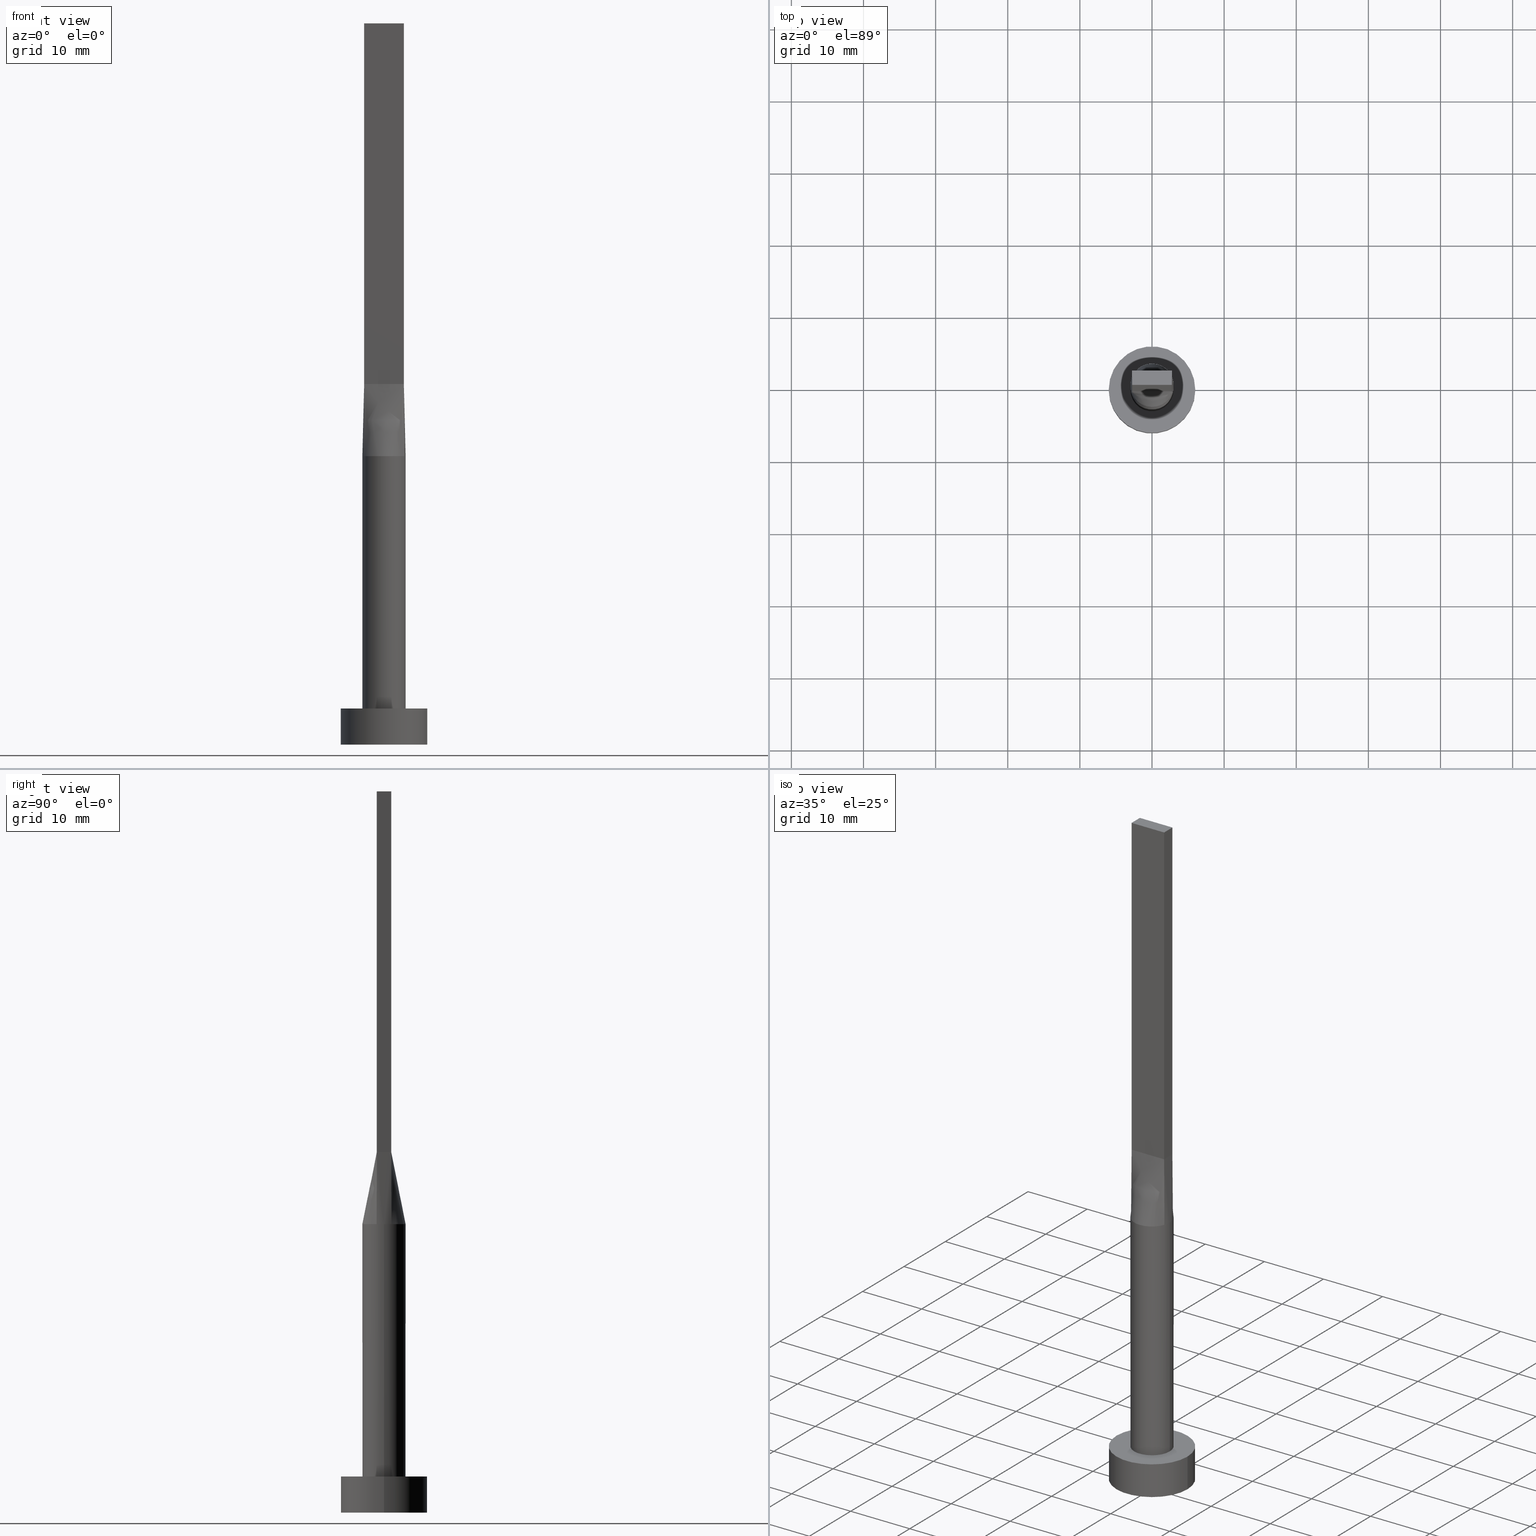
[diagram: canonical four-view strip — front | top / right | iso, engineering-drawing reading convention]
A machine part, canonical four-view strip (front | top / right | iso — engineering-drawing reading convention). The complete STEP part file that produces these views, byte-faithful:
ISO-10303-21;
HEADER;
FILE_DESCRIPTION (( 'STEP AP203' ),
    '1' );
FILE_NAME ('70a2.STEP',
    '2023-02-13T10:49:12',
    ( '' ),
    ( '' ),
    'SwSTEP 2.0',
    'SolidWorks 2019',
    '' );
FILE_SCHEMA (( 'CONFIG_CONTROL_DESIGN' ));
ENDSEC;

DATA;
#1 = B_SPLINE_CURVE_WITH_KNOTS ( 'NONE', 3,
 ( #343, #110, #436, #561, #565, #244, #160, #196, #381, #192, #434, #560, #569, #388, #119, #246, #157, #336 ),
 .UNSPECIFIED., .F., .F.,
 ( 4, 2, 2, 2, 2, 2, 2, 2, 4 ),
 ( 0.000000000000000000, 0.1249999999999998890, 0.2499999999999997780, 0.3749999999999997780, 0.4999999999999997780, 0.6249999999999997780, 0.7499999999999997780, 0.8749999999999998890, 1.000000000000000000 ),
 .UNSPECIFIED. ) ;
#2 = LINE ( 'NONE', #498, #318 ) ;
#3 = VERTEX_POINT ( 'NONE', #186 ) ;
#4 = FACE_OUTER_BOUND ( 'NONE', #559, .T. ) ;
#5 = CARTESIAN_POINT ( 'NONE',  ( 0.000000000000000000, 0.000000000000000000, 0.000000000000000000 ) ) ;
#6 = DIRECTION ( 'NONE',  ( -0.000000000000000000, -0.000000000000000000, -1.000000000000000000 ) ) ;
#7 = ORIENTED_EDGE ( 'NONE', *, *, #527, .F. ) ;
#8 = CARTESIAN_POINT ( 'NONE',  ( -2.784690135232655628, 1.012614594630056430, 45.00000000000000000 ) ) ;
#9 = CARTESIAN_POINT ( 'NONE',  ( 0.000000000000000000, 0.000000000000000000, 40.00000000000000000 ) ) ;
#10 = ORIENTED_EDGE ( 'NONE', *, *, #300, .T. ) ;
#11 = ADVANCED_FACE ( 'NONE', ( #333 ), #65, .T. ) ;
#12 = PLANE ( 'NONE',  #220 ) ;
#13 = CARTESIAN_POINT ( 'NONE',  ( 2.520833333333333037, 1.000000000000000000, 50.00000000000000000 ) ) ;
#14 = LINE ( 'NONE', #274, #545 ) ;
#15 = ORIENTED_EDGE ( 'NONE', *, *, #226, .F. ) ;
#16 = CARTESIAN_POINT ( 'NONE',  ( 1.145833333333335036, 1.000000000000000000, 50.00000000000000000 ) ) ;
#17 = ORIENTED_EDGE ( 'NONE', *, *, #402, .F. ) ;
#18 = AXIS2_PLACEMENT_3D ( 'NONE', #277, #467, #54 ) ;
#19 = ADVANCED_FACE ( 'NONE', ( #368 ), #177, .T. ) ;
#20 = APPLICATION_PROTOCOL_DEFINITION ( 'international standard', 'config_control_design', 1994, #486 ) ;
#21 = VERTEX_POINT ( 'NONE', #317 ) ;
#22 = AXIS2_PLACEMENT_3D ( 'NONE', #363, #359, #542 ) ;
#23 = ORIENTED_EDGE ( 'NONE', *, *, #478, .T. ) ;
#24 = CARTESIAN_POINT ( 'NONE',  ( -2.749999999999999556, 1.000000000000000000, 100.0000000000000000 ) ) ;
#25 = CARTESIAN_POINT ( 'NONE',  ( 0.000000000000000000, 0.000000000000000000, 5.000000000000000000 ) ) ;
#26 = ORIENTED_EDGE ( 'NONE', *, *, #39, .F. ) ;
#27 = CARTESIAN_POINT ( 'NONE',  ( -2.749999999999999556, 1.000000000000000000, 50.00000000000000000 ) ) ;
#28 = PERSON_AND_ORGANIZATION ( #356, #191 ) ;
#29 = ORIENTED_EDGE ( 'NONE', *, *, #195, .F. ) ;
#30 = EDGE_CURVE ( 'NONE', #494, #189, #259, .T. ) ;
#31 = FACE_OUTER_BOUND ( 'NONE', #471, .T. ) ;
#32 = VERTEX_POINT ( 'NONE', #358 ) ;
#33 = CARTESIAN_POINT ( 'NONE',  ( 0.000000000000000000, 0.000000000000000000, 40.00000000000000000 ) ) ;
#34 = CC_DESIGN_APPROVAL ( #143, ( #207 ) ) ;
#35 = EDGE_CURVE ( 'NONE', #194, #416, #213, .T. ) ;
#36 = DIRECTION ( 'NONE',  ( 1.000000000000000000, 0.000000000000000000, 0.000000000000000000 ) ) ;
#37 = CARTESIAN_POINT ( 'NONE',  ( -2.520833333333332593, 1.000000000000000000, 50.00000000000000000 ) ) ;
#38 = CARTESIAN_POINT ( 'NONE',  ( 3.000000000000000444, 3.673940397442060361E-16, 40.00000000000000000 ) ) ;
#39 = EDGE_CURVE ( 'NONE', #218, #44, #251, .T. ) ;
#40 = LINE ( 'NONE', #312, #331 ) ;
#41 = SECURITY_CLASSIFICATION ( '', '', #212 ) ;
#42 = DIRECTION ( 'NONE',  ( 0.000000000000000000, 0.000000000000000000, 1.000000000000000000 ) ) ;
#43 = CARTESIAN_POINT ( 'NONE',  ( 0.6998073349918603192, -2.936959335800557902, 40.00000000000000711 ) ) ;
#44 = VERTEX_POINT ( 'NONE', #407 ) ;
#45 = AXIS2_PLACEMENT_3D ( 'NONE', #169, #533, #166 ) ;
#46 = CARTESIAN_POINT ( 'NONE',  ( -3.000000000000000444, 0.000000000000000000, 5.000000000000000000 ) ) ;
#47 = UNCERTAINTY_MEASURE_WITH_UNIT (LENGTH_MEASURE( 1.000000000000000082E-05 ), #556, 'distance_accuracy_value', 'NONE');
#48 = ORIENTED_EDGE ( 'NONE', *, *, #365, .T. ) ;
#49 = CARTESIAN_POINT ( 'NONE',  ( 0.000000000000000000, 0.000000000000000000, 5.000000000000000000 ) ) ;
#50 = EDGE_CURVE ( 'NONE', #223, #44, #40, .T. ) ;
#51 = ORIENTED_EDGE ( 'NONE', *, *, #500, .T. ) ;
#52 = VECTOR ( 'NONE', #315, 1000.000000000000000 ) ;
#53 = FACE_OUTER_BOUND ( 'NONE', #505, .T. ) ;
#54 = DIRECTION ( 'NONE',  ( -1.000000000000000000, 0.000000000000000000, 0.000000000000000000 ) ) ;
#55 = ORIENTED_EDGE ( 'NONE', *, *, #241, .F. ) ;
#56 = CIRCLE ( 'NONE', #45, 3.000000000000000444 ) ;
#57 = AXIS2_PLACEMENT_3D ( 'NONE', #9, #42, #456 ) ;
#58 = CARTESIAN_POINT ( 'NONE',  ( 0.6998073349918605413, 2.936959335800557014, 40.00000000000000000 ) ) ;
#59 = CARTESIAN_POINT ( 'NONE',  ( 2.750000000000000000, -0.9999999999999997780, 50.00000000000000000 ) ) ;
#60 = ORIENTED_EDGE ( 'NONE', *, *, #35, .F. ) ;
#61 = CARTESIAN_POINT ( 'NONE',  ( 0.4583333333333332593, -0.9999999999999995559, 50.00000000000000000 ) ) ;
#62 = ORIENTED_EDGE ( 'NONE', *, *, #365, .F. ) ;
#63 = AXIS2_PLACEMENT_3D ( 'NONE', #33, #202, #349 ) ;
#64 = AXIS2_PLACEMENT_3D ( 'NONE', #152, #506, #329 ) ;
#65 = B_SPLINE_SURFACE_WITH_KNOTS ( 'NONE', 3, 1, ( 
 ( #507, #285 ),
 ( #563, #206 ),
 ( #575, #530 ),
 ( #521, #480 ),
 ( #140, #172 ),
 ( #216, #531 ) ),
 .UNSPECIFIED., .F., .F., .F.,
 ( 4, 2, 4 ),
 ( 2, 2 ),
 ( 0.000000000000000000, 0.5000000000000000000, 1.000000000000000000 ),
 ( 0.000000000000000000, 1.000000000000000000 ),
 .UNSPECIFIED. ) ;
#66 = CARTESIAN_POINT ( 'NONE',  ( 2.819380270465311700, -1.025229189260112417, 40.00000000000000000 ) ) ;
#67 = CARTESIAN_POINT ( 'NONE',  ( -2.749999999999999556, 1.000000000000000000, 50.00000000000000000 ) ) ;
#68 = VECTOR ( 'NONE', #512, 1000.000000000000000 ) ;
#69 = CARTESIAN_POINT ( 'NONE',  ( -2.750000000000000000, -0.9999999999999993339, 100.0000000000000000 ) ) ;
#70 = ORIENTED_EDGE ( 'NONE', *, *, #347, .T. ) ;
#71 = CYLINDRICAL_SURFACE ( 'NONE', #310, 3.000000000000000444 ) ;
#72 = DIRECTION ( 'NONE',  ( -2.168404344971008868E-16, 1.000000000000000000, 0.000000000000000000 ) ) ;
#73 = DATE_TIME_ROLE ( 'creation_date' ) ;
#74 = ORIENTED_EDGE ( 'NONE', *, *, #30, .F. ) ;
#75 = ADVANCED_FACE ( 'NONE', ( #91 ), #150, .T. ) ;
#76 = VECTOR ( 'NONE', #431, 1000.000000000000000 ) ;
#77 = AXIS2_PLACEMENT_3D ( 'NONE', #81, #299, #473 ) ;
#78 = ORIENTED_EDGE ( 'NONE', *, *, #469, .T. ) ;
#79 = CARTESIAN_POINT ( 'NONE',  ( -2.749999999999999556, 0.3333333333333337034, 50.00000000000000000 ) ) ;
#80 = CARTESIAN_POINT ( 'NONE',  ( -1.833333333333331261, 1.000000000000000000, 50.00000000000000000 ) ) ;
#81 = CARTESIAN_POINT ( 'NONE',  ( 0.000000000000000000, 0.000000000000000000, 0.000000000000000000 ) ) ;
#82 = CARTESIAN_POINT ( 'NONE',  ( 2.749999999999999556, 1.000000000000000000, 100.0000000000000000 ) ) ;
#83 = LINE ( 'NONE', #400, #76 ) ;
#84 = CARTESIAN_POINT ( 'NONE',  ( -1.338960936578149408, 2.706038443291637119, 39.99999999999999289 ) ) ;
#85 = COORDINATED_UNIVERSAL_TIME_OFFSET ( 1, 0, .AHEAD. ) ;
#86 = EDGE_CURVE ( 'NONE', #146, #3, #485, .T. ) ;
#87 = PERSON_AND_ORGANIZATION ( #356, #191 ) ;
#88 = DIRECTION ( 'NONE',  ( -1.000000000000000000, 0.000000000000000000, 0.000000000000000000 ) ) ;
#89 = CARTESIAN_POINT ( 'NONE',  ( 0.3502136323054372835, -3.000000000000000444, 39.99999999999998579 ) ) ;
#90 = ORIENTED_EDGE ( 'NONE', *, *, #293, .F. ) ;
#91 = FACE_OUTER_BOUND ( 'NONE', #148, .T. ) ;
#92 = ORIENTED_EDGE ( 'NONE', *, *, #50, .T. ) ;
#93 = EDGE_CURVE ( 'NONE', #330, #32, #438, .T. ) ;
#94 = LINE ( 'NONE', #579, #455 ) ;
#95 = ORIENTED_EDGE ( 'NONE', *, *, #441, .F. ) ;
#96 = CARTESIAN_POINT ( 'NONE',  ( 2.625980160873452540, 1.476334031700886618, 40.00000000000000000 ) ) ;
#97 = ORIENTED_EDGE ( 'NONE', *, *, #118, .T. ) ;
#98 = CARTESIAN_POINT ( 'NONE',  ( 2.750000000000000000, -0.9999999999999997780, 100.0000000000000000 ) ) ;
#99 = ORIENTED_EDGE ( 'NONE', *, *, #50, .F. ) ;
#100 = EDGE_CURVE ( 'NONE', #549, #218, #14, .T. ) ;
#101 = CARTESIAN_POINT ( 'NONE',  ( 0.2291666666666679342, 1.000000000000000000, 50.00000000000000711 ) ) ;
#102 = LINE ( 'NONE', #283, #68 ) ;
#103 = ORIENTED_EDGE ( 'NONE', *, *, #127, .T. ) ;
#104 = APPROVAL_PERSON_ORGANIZATION ( #562, #143, #578 ) ;
#105 = CARTESIAN_POINT ( 'NONE',  ( 6.000000000000000888, 7.347880794884120722E-16, 0.000000000000000000 ) ) ;
#106 = VERTEX_POINT ( 'NONE', #46 ) ;
#107 = EDGE_CURVE ( 'NONE', #146, #453, #2, .T. ) ;
#108 = ORIENTED_EDGE ( 'NONE', *, *, #500, .F. ) ;
#109 = CARTESIAN_POINT ( 'NONE',  ( 2.750000000000000000, -0.9999999999999997780, 100.0000000000000000 ) ) ;
#110 = CARTESIAN_POINT ( 'NONE',  ( 2.739088299662392867, 1.246032108968142538, 40.00000000000000711 ) ) ;
#111 = APPROVAL_STATUS ( 'not_yet_approved' ) ;
#112 = DIRECTION ( 'NONE',  ( 1.000000000000000000, 0.000000000000000000, 0.000000000000000000 ) ) ;
#113 = ORIENTED_EDGE ( 'NONE', *, *, #488, .T. ) ;
#114 = CIRCLE ( 'NONE', #63, 3.000000000000000444 ) ;
#115 = CC_DESIGN_SECURITY_CLASSIFICATION ( #41, ( #207 ) ) ;
#116 = DIRECTION ( 'NONE',  ( 1.000000000000000000, 0.000000000000000000, 0.000000000000000000 ) ) ;
#117 = MECHANICAL_CONTEXT ( 'NONE', #486, 'mechanical' ) ;
#118 = EDGE_CURVE ( 'NONE', #457, #106, #408, .T. ) ;
#119 = CARTESIAN_POINT ( 'NONE',  ( -2.314486317179579977, 1.928337902455808051, 40.00000000000000000 ) ) ;
#120 = CLOSED_SHELL ( 'NONE', ( #508, #19, #516, #211, #249, #577, #187, #11, #321, #75, #339, #571, #404, #389, #182 ) ) ;
#121 = CARTESIAN_POINT ( 'NONE',  ( -2.750000000000000000, -0.6666666666666658525, 50.00000000000000000 ) ) ;
#122 = PERSON_AND_ORGANIZATION ( #356, #191 ) ;
#123 = CARTESIAN_POINT ( 'NONE',  ( 0.000000000000000000, 0.000000000000000000, 0.000000000000000000 ) ) ;
#124 = CARTESIAN_POINT ( 'NONE',  ( -1.604166666666664520, 1.000000000000000000, 50.00000000000000000 ) ) ;
#125 = AXIS2_PLACEMENT_3D ( 'NONE', #304, #489, #112 ) ;
#126 = PERSON_AND_ORGANIZATION ( #356, #191 ) ;
#127 = EDGE_CURVE ( 'NONE', #453, #412, #173, .T. ) ;
#128 = CARTESIAN_POINT ( 'NONE',  ( 0.000000000000000000, 0.000000000000000000, 40.00000000000000000 ) ) ;
#129 = DIRECTION ( 'NONE',  ( 2.168404344971008868E-16, -1.000000000000000000, 0.000000000000000000 ) ) ;
#130 = CARTESIAN_POINT ( 'NONE',  ( -2.625980160873452540, -1.476334031700885507, 40.00000000000000711 ) ) ;
#131 = AXIS2_PLACEMENT_3D ( 'NONE', #528, #483, #36 ) ;
#132 = DESIGN_CONTEXT ( 'detailed design', #573, 'design' ) ;
#133 = ORIENTED_EDGE ( 'NONE', *, *, #134, .F. ) ;
#134 = EDGE_CURVE ( 'NONE', #243, #330, #525, .T. ) ;
#135 = CARTESIAN_POINT ( 'NONE',  ( 2.749999999999999556, 1.000000000000000000, 100.0000000000000000 ) ) ;
#136 = CARTESIAN_POINT ( 'NONE',  ( -1.627925520694712525, -2.539128397820340055, 39.99999999999999289 ) ) ;
#137 = EDGE_LOOP ( 'NONE', ( #335, #90, #92, #557 ) ) ;
#138 = FACE_OUTER_BOUND ( 'NONE', #270, .T. ) ;
#139 = CARTESIAN_POINT ( 'NONE',  ( 2.819412401233197141, 1.025240989080170806, 40.00000000000000000 ) ) ;
#140 = CARTESIAN_POINT ( 'NONE',  ( 2.936168591633195657, 0.7040613060484338659, 40.00000000000000000 ) ) ;
#141 = CARTESIAN_POINT ( 'NONE',  ( -1.145833333333333259, -0.9999999999999995559, 50.00000000000000711 ) ) ;
#142 = ORIENTED_EDGE ( 'NONE', *, *, #448, .T. ) ;
#143 = APPROVAL ( #111, 'NEUR�EN�' ) ;
#144 = AXIS2_PLACEMENT_3D ( 'NONE', #353, #440, #129 ) ;
#145 = PLANE ( 'NONE',  #22 ) ;
#146 = VERTEX_POINT ( 'NONE', #446 ) ;
#147 = CARTESIAN_POINT ( 'NONE',  ( 1.338960936578149630, 2.706038443291637563, 40.00000000000000000 ) ) ;
#148 = EDGE_LOOP ( 'NONE', ( #552, #492, #170, #17 ) ) ;
#149 = PLANE ( 'NONE',  #256 ) ;
#150 = B_SPLINE_SURFACE_WITH_KNOTS ( 'NONE', 3, 1, ( 
 ( #362, #497 ),
 ( #410, #13 ),
 ( #96, #180 ),
 ( #371, #208 ),
 ( #324, #580 ),
 ( #355, #16 ),
 ( #147, #183 ),
 ( #58, #414 ),
 ( #327, #101 ),
 ( #503, #458 ),
 ( #199, #387 ),
 ( #84, #393 ),
 ( #301, #252 ),
 ( #203, #124 ),
 ( #481, #80 ),
 ( #437, #576 ),
 ( #247, #37 ),
 ( #395, #570 ) ),
 .UNSPECIFIED., .F., .F., .F.,
 ( 4, 2, 2, 2, 2, 2, 2, 2, 4 ),
 ( 2, 2 ),
 ( 0.000000000000000000, 0.1249999999999998890, 0.2499999999999997780, 0.3749999999999997780, 0.4999999999999997780, 0.6249999999999997780, 0.7499999999999997780, 0.8749999999999998890, 1.000000000000000000 ),
 ( 0.000000000000000000, 1.000000000000000000 ),
 .UNSPECIFIED. ) ;
#151 = CARTESIAN_POINT ( 'NONE',  ( 0.9166666666666665186, -0.9999999999999995559, 50.00000000000000000 ) ) ;
#152 = CARTESIAN_POINT ( 'NONE',  ( -2.749999999999999556, 1.000000000000000000, 100.0000000000000000 ) ) ;
#153 = ORIENTED_EDGE ( 'NONE', *, *, #425, .F. ) ;
#154 = DIRECTION ( 'NONE',  ( 1.000000000000000000, -7.885106708985487801E-17, 0.000000000000000000 ) ) ;
#155 = CIRCLE ( 'NONE', #499, 6.000000000000000888 ) ;
#156 = CC_DESIGN_PERSON_AND_ORGANIZATION_ASSIGNMENT ( #122, #418, ( #273 ) ) ;
#157 = CARTESIAN_POINT ( 'NONE',  ( -2.739088299662392423, 1.246032108968142316, 40.00000000000000000 ) ) ;
#158 = ORIENTED_EDGE ( 'NONE', *, *, #93, .T. ) ;
#159 = DIRECTION ( 'NONE',  ( 1.000000000000000000, 0.000000000000000000, 0.000000000000000000 ) ) ;
#160 = CARTESIAN_POINT ( 'NONE',  ( 1.338960936578149630, 2.706038443291637563, 40.00000000000000000 ) ) ;
#161 = PRODUCT_RELATED_PRODUCT_CATEGORY ( 'detail', '', ( #465 ) ) ;
#162 = DIRECTION ( 'NONE',  ( 0.000000000000000000, 0.000000000000000000, 1.000000000000000000 ) ) ;
#163 = CALENDAR_DATE ( 2023, 13, 2 ) ;
#164 = EDGE_CURVE ( 'NONE', #32, #106, #56, .T. ) ;
#165 = APPROVAL_ROLE ( '' ) ;
#166 = DIRECTION ( 'NONE',  ( 1.000000000000000000, 0.000000000000000000, 0.000000000000000000 ) ) ;
#167 = DATE_AND_TIME ( #253, #464 ) ;
#168 = CARTESIAN_POINT ( 'NONE',  ( -2.819380270465311700, -1.025229189260112195, 40.00000000000000000 ) ) ;
#169 = CARTESIAN_POINT ( 'NONE',  ( 0.000000000000000000, 0.000000000000000000, 5.000000000000000000 ) ) ;
#170 = ORIENTED_EDGE ( 'NONE', *, *, #448, .F. ) ;
#171 = FACE_OUTER_BOUND ( 'NONE', #364, .T. ) ;
#172 = CARTESIAN_POINT ( 'NONE',  ( 2.749999999999999556, 0.6666666666666666297, 50.00000000000000000 ) ) ;
#173 = LINE ( 'NONE', #181, #306 ) ;
#174 = VERTEX_POINT ( 'NONE', #266 ) ;
#175 = LINE ( 'NONE', #309, #52 ) ;
#176 = DIRECTION ( 'NONE',  ( -0.006937837988376364777, 0.002522850177591326286, 0.9999727504442450510 ) ) ;
#177 = CYLINDRICAL_SURFACE ( 'NONE', #515, 6.000000000000000888 ) ;
#178 = CARTESIAN_POINT ( 'NONE',  ( -2.291666666666666519, -0.9999999999999995559, 50.00000000000000000 ) ) ;
#179 = ORIENTED_EDGE ( 'NONE', *, *, #469, .F. ) ;
#180 = CARTESIAN_POINT ( 'NONE',  ( 2.291666666666666963, 1.000000000000000000, 50.00000000000000000 ) ) ;
#181 = CARTESIAN_POINT ( 'NONE',  ( -2.749999999999999556, 1.000000000000000000, 100.0000000000000000 ) ) ;
#182 = ADVANCED_FACE ( 'NONE', ( #53 ), #145, .T. ) ;
#183 = CARTESIAN_POINT ( 'NONE',  ( 0.9166666666666685170, 1.000000000000000000, 50.00000000000000000 ) ) ;
#184 = CIRCLE ( 'NONE', #200, 3.000000000000000444 ) ;
#185 = CARTESIAN_POINT ( 'NONE',  ( 0.000000000000000000, 0.000000000000000000, 5.000000000000000000 ) ) ;
#186 = CARTESIAN_POINT ( 'NONE',  ( 2.749999999999999556, 1.000000000000000000, 50.00000000000000000 ) ) ;
#187 = ADVANCED_FACE ( 'NONE', ( #254 ), #522, .T. ) ;
#188 = CARTESIAN_POINT ( 'NONE',  ( 1.145833333333333259, -0.9999999999999995559, 50.00000000000000000 ) ) ;
#189 = VERTEX_POINT ( 'NONE', #59 ) ;
#190 = CIRCLE ( 'NONE', #131, 3.000000000000000444 ) ;
#191 = ORGANIZATION ( 'NEUR�EN�', 'NEUR�EN�', '' ) ;
#192 = CARTESIAN_POINT ( 'NONE',  ( -0.3502136323054376721, 2.999999999999999112, 39.99999999999999289 ) ) ;
#193 = CARTESIAN_POINT ( 'NONE',  ( 2.291666666666666519, -0.9999999999999995559, 50.00000000000000000 ) ) ;
#194 = VERTEX_POINT ( 'NONE', #340 ) ;
#195 = EDGE_CURVE ( 'NONE', #453, #416, #102, .T. ) ;
#196 = CARTESIAN_POINT ( 'NONE',  ( 0.6998073349918605413, 2.936959335800557014, 40.00000000000000000 ) ) ;
#197 = CARTESIAN_POINT ( 'NONE',  ( -2.819380270465311700, 1.025229189260112861, 40.00000000000000000 ) ) ;
#198 = CALENDAR_DATE ( 2023, 13, 2 ) ;
#199 = CARTESIAN_POINT ( 'NONE',  ( -0.6998073349918608743, 2.936959335800557014, 40.00000000000000000 ) ) ;
#200 = AXIS2_PLACEMENT_3D ( 'NONE', #462, #286, #421 ) ;
#201 = APPROVAL_PERSON_ORGANIZATION ( #477, #413, #432 ) ;
#202 = DIRECTION ( 'NONE',  ( 0.000000000000000000, 0.000000000000000000, 1.000000000000000000 ) ) ;
#203 = CARTESIAN_POINT ( 'NONE',  ( -2.115507543051069916, 2.149870311632977593, 39.99999999999999289 ) ) ;
#204 = CALENDAR_DATE ( 2023, 13, 2 ) ;
#205 = CC_DESIGN_PERSON_AND_ORGANIZATION_ASSIGNMENT ( #28, #518, ( #465 ) ) ;
#206 = CARTESIAN_POINT ( 'NONE',  ( 2.750000000000000000, -0.6666666666666666297, 50.00000000000000000 ) ) ;
#207 = PRODUCT_DEFINITION_FORMATION_WITH_SPECIFIED_SOURCE ( 'LIBOVOLN�', '', #465, .NOT_KNOWN. ) ;
#208 = CARTESIAN_POINT ( 'NONE',  ( 1.833333333333334370, 1.000000000000000000, 50.00000000000000000 ) ) ;
#209 = CARTESIAN_POINT ( 'NONE',  ( -1.604166666666666519, -0.9999999999999995559, 50.00000000000000000 ) ) ;
#210 = DIRECTION ( 'NONE',  ( -0.000000000000000000, -0.000000000000000000, -1.000000000000000000 ) ) ;
#211 = ADVANCED_FACE ( 'NONE', ( #466, #233 ), #288, .T. ) ;
#212 = SECURITY_CLASSIFICATION_LEVEL ( 'unclassified' ) ;
#213 = LINE ( 'NONE', #8, #439 ) ;
#214 = EDGE_LOOP ( 'NONE', ( #447, #461, #292, #424, #60 ) ) ;
#215 = PERSON_AND_ORGANIZATION ( #356, #191 ) ;
#216 = CARTESIAN_POINT ( 'NONE',  ( 2.819380270465311700, 1.025229189260112639, 40.00000000000000000 ) ) ;
#217 = DIRECTION ( 'NONE',  ( -0.000000000000000000, -0.000000000000000000, -1.000000000000000000 ) ) ;
#218 = VERTEX_POINT ( 'NONE', #105 ) ;
#219 = FACE_OUTER_BOUND ( 'NONE', #539, .T. ) ;
#220 = AXIS2_PLACEMENT_3D ( 'NONE', #135, #354, #529 ) ;
#221 = DIRECTION ( 'NONE',  ( -0.000000000000000000, -0.000000000000000000, -1.000000000000000000 ) ) ;
#222 = DIRECTION ( 'NONE',  ( -2.168404344971009854E-16, -1.000000000000000000, 0.000000000000000000 ) ) ;
#223 = VERTEX_POINT ( 'NONE', #470 ) ;
#224 = CARTESIAN_POINT ( 'NONE',  ( -2.750000000000000000, -0.9999999999999993339, 50.00000000000000000 ) ) ;
#225 = EDGE_LOOP ( 'NONE', ( #341, #474, #496, #7, #62 ) ) ;
#226 = EDGE_CURVE ( 'NONE', #412, #174, #415, .T. ) ;
#227 = CARTESIAN_POINT ( 'NONE',  ( 1.338960936578149630, -2.706038443291638007, 40.00000000000000711 ) ) ;
#228 = ORIENTED_EDGE ( 'NONE', *, *, #279, .F. ) ;
#229 = CARTESIAN_POINT ( 'NONE',  ( 1.604166666666666741, -0.9999999999999995559, 50.00000000000000000 ) ) ;
#230 = ORIENTED_EDGE ( 'NONE', *, *, #30, .T. ) ;
#231 = LOCAL_TIME ( 11, 49, 12.00000000000000000, #547 ) ;
#232 = EDGE_CURVE ( 'NONE', #549, #223, #406, .T. ) ;
#233 = FACE_OUTER_BOUND ( 'NONE', #502, .T. ) ;
#234 = ORIENTED_EDGE ( 'NONE', *, *, #226, .T. ) ;
#235 = VECTOR ( 'NONE', #250, 1000.000000000000000 ) ;
#236 = DIRECTION ( 'NONE',  ( 7.885106708985487801E-17, 1.000000000000000000, -0.000000000000000000 ) ) ;
#237 = DIRECTION ( 'NONE',  ( -0.000000000000000000, -0.000000000000000000, -1.000000000000000000 ) ) ;
#238 = EDGE_LOOP ( 'NONE', ( #360, #314, #275, #99 ) ) ;
#239 = ORIENTED_EDGE ( 'NONE', *, *, #107, .F. ) ;
#240 = AXIS2_PLACEMENT_3D ( 'NONE', #185, #423, #510 ) ;
#241 = EDGE_CURVE ( 'NONE', #457, #21, #190, .T. ) ;
#242 = APPROVAL_STATUS ( 'not_yet_approved' ) ;
#243 = VERTEX_POINT ( 'NONE', #476 ) ;
#244 = CARTESIAN_POINT ( 'NONE',  ( 1.627925520694712080, 2.539128397820340943, 40.00000000000000000 ) ) ;
#245 = COORDINATED_UNIVERSAL_TIME_OFFSET ( 1, 0, .AHEAD. ) ;
#246 = CARTESIAN_POINT ( 'NONE',  ( -2.625980160873452096, 1.476334031700886396, 39.99999999999998579 ) ) ;
#247 = CARTESIAN_POINT ( 'NONE',  ( -2.739088299662392423, 1.246032108968142316, 40.00000000000000000 ) ) ;
#248 = CIRCLE ( 'NONE', #374, 3.000000000000000444 ) ;
#249 = ADVANCED_FACE ( 'NONE', ( #31 ), #394, .F. ) ;
#250 = DIRECTION ( 'NONE',  ( -0.000000000000000000, -0.000000000000000000, -1.000000000000000000 ) ) ;
#251 = CIRCLE ( 'NONE', #276, 6.000000000000000888 ) ;
#252 = CARTESIAN_POINT ( 'NONE',  ( -1.145833333333331261, 1.000000000000000000, 50.00000000000000000 ) ) ;
#253 = CALENDAR_DATE ( 2023, 13, 2 ) ;
#254 = FACE_OUTER_BOUND ( 'NONE', #370, .T. ) ;
#255 = CC_DESIGN_PERSON_AND_ORGANIZATION_ASSIGNMENT ( #87, #258, ( #207 ) ) ;
#256 = AXIS2_PLACEMENT_3D ( 'NONE', #280, #236, #287 ) ;
#257 = DIRECTION ( 'NONE',  ( -0.006937837988376408145, -0.002522850177591326286, 0.9999727504442450510 ) ) ;
#258 = PERSON_AND_ORGANIZATION_ROLE ( 'creator' ) ;
#259 = LINE ( 'NONE', #98, #265 ) ;
#260 = CARTESIAN_POINT ( 'NONE',  ( 0.2291666666666665464, -0.9999999999999995559, 50.00000000000000711 ) ) ;
#261 = ORIENTED_EDGE ( 'NONE', *, *, #164, .F. ) ;
#262 = DIRECTION ( 'NONE',  ( 1.000000000000000000, 0.000000000000000000, 0.000000000000000000 ) ) ;
#263 = APPROVAL_DATE_TIME ( #541, #143 ) ;
#264 = DIRECTION ( 'NONE',  ( 0.006937837988376408145, -0.002522850177591348404, 0.9999727504442450510 ) ) ;
#265 = VECTOR ( 'NONE', #445, 1000.000000000000000 ) ;
#266 = CARTESIAN_POINT ( 'NONE',  ( -2.750000000000000000, -0.9999999999999993339, 50.00000000000000000 ) ) ;
#267 = EDGE_LOOP ( 'NONE', ( #429, #133, #534, #55, #97, #23 ) ) ;
#268 = PLANE ( 'NONE',  #144 ) ;
#269 = CARTESIAN_POINT ( 'NONE',  ( -2.784690135232656072, -1.012614594630055764, 45.00000000000000000 ) ) ;
#270 = EDGE_LOOP ( 'NONE', ( #70, #15, #405, #543 ) ) ;
#271 = VECTOR ( 'NONE', #367, 1000.000000000000227 ) ;
#272 = CARTESIAN_POINT ( 'NONE',  ( -2.749999999999999556, 1.000000000000000000, 50.00000000000000000 ) ) ;
#273 = PRODUCT_DEFINITION ( 'NEZN�M�', '', #207, #132 ) ;
#274 = CARTESIAN_POINT ( 'NONE',  ( 6.000000000000000888, 7.347880794884120722E-16, 5.000000000000000000 ) ) ;
#275 = ORIENTED_EDGE ( 'NONE', *, *, #39, .T. ) ;
#276 = AXIS2_PLACEMENT_3D ( 'NONE', #5, #536, #451 ) ;
#277 = CARTESIAN_POINT ( 'NONE',  ( 0.000000000000000000, 0.000000000000000000, 40.00000000000000000 ) ) ;
#278 = ORIENTED_EDGE ( 'NONE', *, *, #232, .T. ) ;
#279 = EDGE_CURVE ( 'NONE', #44, #218, #155, .T. ) ;
#280 = CARTESIAN_POINT ( 'NONE',  ( -2.750000000000000000, -0.9999999999999993339, 100.0000000000000000 ) ) ;
#281 = VECTOR ( 'NONE', #154, 1000.000000000000000 ) ;
#282 =( GEOMETRIC_REPRESENTATION_CONTEXT ( 3 ) GLOBAL_UNCERTAINTY_ASSIGNED_CONTEXT ( ( #47 ) ) GLOBAL_UNIT_ASSIGNED_CONTEXT ( ( #556, #411, #284 ) ) REPRESENTATION_CONTEXT ( 'NONE', 'WORKASPACE' ) );
#283 = CARTESIAN_POINT ( 'NONE',  ( -2.749999999999999556, 1.000000000000000000, 100.0000000000000000 ) ) ;
#284 =( NAMED_UNIT ( * ) SI_UNIT ( $, .STERADIAN. ) SOLID_ANGLE_UNIT ( ) );
#285 = CARTESIAN_POINT ( 'NONE',  ( 2.750000000000000000, -1.000000000000000000, 50.00000000000000000 ) ) ;
#286 = DIRECTION ( 'NONE',  ( 0.000000000000000000, 0.000000000000000000, 1.000000000000000000 ) ) ;
#287 = DIRECTION ( 'NONE',  ( -1.000000000000000000, 7.885106708985487801E-17, 0.000000000000000000 ) ) ;
#288 = PLANE ( 'NONE',  #240 ) ;
#289 = LINE ( 'NONE', #472, #427 ) ;
#290 = ORIENTED_EDGE ( 'NONE', *, *, #375, .T. ) ;
#291 = APPLICATION_PROTOCOL_DEFINITION ( 'international standard', 'config_control_design', 1994, #573 ) ;
#292 = ORIENTED_EDGE ( 'NONE', *, *, #375, .F. ) ;
#293 = EDGE_CURVE ( 'NONE', #223, #549, #484, .T. ) ;
#294 = DIRECTION ( 'NONE',  ( -1.000000000000000000, 0.000000000000000000, 0.000000000000000000 ) ) ;
#295 = LOCAL_TIME ( 11, 49, 12.00000000000000000, #85 ) ;
#296 = CARTESIAN_POINT ( 'NONE',  ( -2.749999999999999556, 0.6666666666666668517, 50.00000000000000000 ) ) ;
#297 = VECTOR ( 'NONE', #6, 1000.000000000000000 ) ;
#298 = CARTESIAN_POINT ( 'NONE',  ( 0.000000000000000000, 0.000000000000000000, 0.000000000000000000 ) ) ;
#299 = DIRECTION ( 'NONE',  ( 0.000000000000000000, 0.000000000000000000, 1.000000000000000000 ) ) ;
#300 = EDGE_CURVE ( 'NONE', #412, #494, #83, .T. ) ;
#301 = CARTESIAN_POINT ( 'NONE',  ( -1.627925520694712747, 2.539128397820341831, 40.00000000000000711 ) ) ;
#302 = COORDINATED_UNIVERSAL_TIME_OFFSET ( 1, 0, .AHEAD. ) ;
#303 = DATE_TIME_ROLE ( 'classification_date' ) ;
#304 = CARTESIAN_POINT ( 'NONE',  ( 0.000000000000000000, 0.000000000000000000, 5.000000000000000000 ) ) ;
#305 = VECTOR ( 'NONE', #501, 1000.000000000000000 ) ;
#306 = VECTOR ( 'NONE', #222, 1000.000000000000000 ) ;
#307 = CC_DESIGN_PERSON_AND_ORGANIZATION_ASSIGNMENT ( #215, #397, ( #207 ) ) ;
#308 = CARTESIAN_POINT ( 'NONE',  ( -0.4583333333333333703, -0.9999999999999995559, 50.00000000000000711 ) ) ;
#309 = CARTESIAN_POINT ( 'NONE',  ( 2.749999999999999556, 1.000000000000000000, 50.00000000000000000 ) ) ;
#310 = AXIS2_PLACEMENT_3D ( 'NONE', #433, #342, #294 ) ;
#311 = LINE ( 'NONE', #269, #271 ) ;
#312 = CARTESIAN_POINT ( 'NONE',  ( -6.000000000000000888, 0.000000000000000000, 5.000000000000000000 ) ) ;
#313 = CARTESIAN_POINT ( 'NONE',  ( -2.115507543051069472, -2.149870311632975373, 40.00000000000000000 ) ) ;
#314 = ORIENTED_EDGE ( 'NONE', *, *, #100, .T. ) ;
#315 = DIRECTION ( 'NONE',  ( -2.168404344971008868E-16, 1.000000000000000000, -0.000000000000000000 ) ) ;
#316 = DIRECTION ( 'NONE',  ( -2.168404344971009854E-16, -1.000000000000000000, 0.000000000000000000 ) ) ;
#317 = CARTESIAN_POINT ( 'NONE',  ( -2.819413526938078007, -1.025241406939941369, 40.00000000000000000 ) ) ;
#318 = VECTOR ( 'NONE', #452, 1000.000000000000000 ) ;
#319 = CARTESIAN_POINT ( 'NONE',  ( -1.338960936578150518, -2.706038443291638007, 40.00000000000001421 ) ) ;
#320 = ORIENTED_EDGE ( 'NONE', *, *, #300, .F. ) ;
#321 = ADVANCED_FACE ( 'NONE', ( #344 ), #564, .T. ) ;
#322 = DIRECTION ( 'NONE',  ( -0.000000000000000000, -0.000000000000000000, -1.000000000000000000 ) ) ;
#323 = CARTESIAN_POINT ( 'NONE',  ( -2.819380270465311700, -1.025229189260111973, 40.00000000000000000 ) ) ;
#324 = CARTESIAN_POINT ( 'NONE',  ( 2.115507543051069916, 2.149870311632976705, 40.00000000000000711 ) ) ;
#325 = CARTESIAN_POINT ( 'NONE',  ( -0.3502136323054380052, -3.000000000000000888, 40.00000000000000000 ) ) ;
#326 = ORIENTED_EDGE ( 'NONE', *, *, #86, .T. ) ;
#327 = CARTESIAN_POINT ( 'NONE',  ( 0.3502136323054376721, 3.000000000000000444, 40.00000000000000000 ) ) ;
#328 = CARTESIAN_POINT ( 'NONE',  ( 1.627925520694712080, -2.539128397820341831, 39.99999999999999289 ) ) ;
#329 = DIRECTION ( 'NONE',  ( 2.168404344971010101E-16, 1.000000000000000000, 0.000000000000000000 ) ) ;
#330 = VERTEX_POINT ( 'NONE', #357 ) ;
#331 = VECTOR ( 'NONE', #322, 1000.000000000000000 ) ;
#332 = CC_DESIGN_DATE_AND_TIME_ASSIGNMENT ( #167, #303, ( #41 ) ) ;
#333 = FACE_OUTER_BOUND ( 'NONE', #225, .T. ) ;
#334 = CARTESIAN_POINT ( 'NONE',  ( 2.750000000000000000, -0.9999999999999997780, 50.00000000000000000 ) ) ;
#335 = ORIENTED_EDGE ( 'NONE', *, *, #100, .F. ) ;
#336 = CARTESIAN_POINT ( 'NONE',  ( -2.819429393986302657, 1.025247261300842760, 40.00000000000000000 ) ) ;
#337 = DIRECTION ( 'NONE',  ( 1.000000000000000000, 0.000000000000000000, 0.000000000000000000 ) ) ;
#338 = FACE_OUTER_BOUND ( 'NONE', #267, .T. ) ;
#339 = ADVANCED_FACE ( 'NONE', ( #171 ), #12, .F. ) ;
#340 = CARTESIAN_POINT ( 'NONE',  ( -2.819429393986302657, 1.025247261300842760, 40.00000000000000000 ) ) ;
#341 = ORIENTED_EDGE ( 'NONE', *, *, #134, .T. ) ;
#342 = DIRECTION ( 'NONE',  ( -0.000000000000000000, -0.000000000000000000, -1.000000000000000000 ) ) ;
#343 = CARTESIAN_POINT ( 'NONE',  ( 2.819412401233197141, 1.025240989080170806, 40.00000000000000000 ) ) ;
#344 = FACE_OUTER_BOUND ( 'NONE', #214, .T. ) ;
#345 = CC_DESIGN_APPROVAL ( #413, ( #273 ) ) ;
#346 = CARTESIAN_POINT ( 'NONE',  ( -2.749999999999999556, 1.000000000000000000, 50.00000000000000000 ) ) ;
#347 = EDGE_CURVE ( 'NONE', #416, #174, #535, .T. ) ;
#348 = DATE_AND_TIME ( #204, #376 ) ;
#349 = DIRECTION ( 'NONE',  ( 1.000000000000000000, 0.000000000000000000, 0.000000000000000000 ) ) ;
#350 = COORDINATED_UNIVERSAL_TIME_OFFSET ( 1, 0, .AHEAD. ) ;
#351 = VECTOR ( 'NONE', #237, 1000.000000000000000 ) ;
#352 = CARTESIAN_POINT ( 'NONE',  ( 2.784690135232655628, 1.012614594630056430, 45.00000000000000000 ) ) ;
#353 = CARTESIAN_POINT ( 'NONE',  ( 2.750000000000000000, -0.9999999999999997780, 100.0000000000000000 ) ) ;
#354 = DIRECTION ( 'NONE',  ( 0.000000000000000000, -1.000000000000000000, 0.000000000000000000 ) ) ;
#355 = CARTESIAN_POINT ( 'NONE',  ( 1.627925520694712080, 2.539128397820340943, 40.00000000000000000 ) ) ;
#356 = PERSON ( 'NEUR�EN�', 'NEUR�EN�', 'NEUR�EN�', ('NEUR�EN�'), ('NEUR�EN�'), ('NEUR�EN�') ) ;
#357 = CARTESIAN_POINT ( 'NONE',  ( 3.000000000000000444, 7.514166843208536743E-18, 39.99999999999999289 ) ) ;
#358 = CARTESIAN_POINT ( 'NONE',  ( 3.000000000000000444, 3.673940397442060361E-16, 5.000000000000000000 ) ) ;
#359 = DIRECTION ( 'NONE',  ( 0.000000000000000000, 0.000000000000000000, 1.000000000000000000 ) ) ;
#360 = ORIENTED_EDGE ( 'NONE', *, *, #232, .F. ) ;
#361 = CYLINDRICAL_SURFACE ( 'NONE', #567, 6.000000000000000888 ) ;
#362 = CARTESIAN_POINT ( 'NONE',  ( 2.819380270465311700, 1.025229189260113083, 40.00000000000000000 ) ) ;
#363 = CARTESIAN_POINT ( 'NONE',  ( 0.000000000000000000, 0.000000000000000000, 100.0000000000000000 ) ) ;
#364 = EDGE_LOOP ( 'NONE', ( #142, #29, #239, #326 ) ) ;
#365 = EDGE_CURVE ( 'NONE', #243, #189, #94, .T. ) ;
#366 = CARTESIAN_POINT ( 'NONE',  ( 6.000000000000000888, 7.347880794884120722E-16, 5.000000000000000000 ) ) ;
#367 = DIRECTION ( 'NONE',  ( -0.006937837988376364777, -0.002522850177591326286, -0.9999727504442450510 ) ) ;
#368 = FACE_OUTER_BOUND ( 'NONE', #238, .T. ) ;
#369 = CARTESIAN_POINT ( 'NONE',  ( -1.833333333333333037, -0.9999999999999995559, 50.00000000000000000 ) ) ;
#370 = EDGE_LOOP ( 'NONE', ( #113, #48, #108, #290 ) ) ;
#371 = CARTESIAN_POINT ( 'NONE',  ( 2.314486317179579977, 1.928337902455807384, 40.00000000000000000 ) ) ;
#372 = CARTESIAN_POINT ( 'NONE',  ( -0.9166666666666666297, -0.9999999999999995559, 50.00000000000000711 ) ) ;
#373 = ORIENTED_EDGE ( 'NONE', *, *, #478, .F. ) ;
#374 = AXIS2_PLACEMENT_3D ( 'NONE', #128, #546, #262 ) ;
#375 = EDGE_CURVE ( 'NONE', #174, #21, #311, .T. ) ;
#376 = LOCAL_TIME ( 11, 49, 12.00000000000000000, #302 ) ;
#377 = ORIENTED_EDGE ( 'NONE', *, *, #164, .T. ) ;
#378 = CARTESIAN_POINT ( 'NONE',  ( 1.833333333333333481, -0.9999999999999995559, 50.00000000000000000 ) ) ;
#379 = ORIENTED_EDGE ( 'NONE', *, *, #107, .T. ) ;
#380 = VERTEX_POINT ( 'NONE', #139 ) ;
#381 = CARTESIAN_POINT ( 'NONE',  ( 0.3502136323054376721, 3.000000000000000444, 40.00000000000000000 ) ) ;
#382 = DIRECTION ( 'NONE',  ( 0.000000000000000000, 0.000000000000000000, 1.000000000000000000 ) ) ;
#383 = EDGE_CURVE ( 'NONE', #330, #380, #248, .T. ) ;
#384 = DIRECTION ( 'NONE',  ( 0.000000000000000000, 0.000000000000000000, 1.000000000000000000 ) ) ;
#385 = EDGE_LOOP ( 'NONE', ( #373, #261 ) ) ;
#386 = ADVANCED_BREP_SHAPE_REPRESENTATION ( '70a2', ( #524, #77 ), #282 ) ;
#387 = CARTESIAN_POINT ( 'NONE',  ( -0.4583333333333315385, 1.000000000000000000, 50.00000000000000000 ) ) ;
#388 = CARTESIAN_POINT ( 'NONE',  ( -2.115507543051069916, 2.149870311632977593, 39.99999999999999289 ) ) ;
#389 = ADVANCED_FACE ( 'NONE', ( #4 ), #268, .F. ) ;
#390 = CARTESIAN_POINT ( 'NONE',  ( -3.000000000000000444, -0.3523499553598117839, 39.99999999999998579 ) ) ;
#391 = DATE_AND_TIME ( #198, #475 ) ;
#392 = VECTOR ( 'NONE', #257, 1000.000000000000227 ) ;
#393 = CARTESIAN_POINT ( 'NONE',  ( -0.9166666666666644092, 1.000000000000000000, 50.00000000000000000 ) ) ;
#394 = PLANE ( 'NONE',  #553 ) ;
#395 = CARTESIAN_POINT ( 'NONE',  ( -2.819380270465311700, 1.025229189260112861, 40.00000000000000000 ) ) ;
#396 = APPROVAL_DATE_TIME ( #348, #532 ) ;
#397 = PERSON_AND_ORGANIZATION_ROLE ( 'design_supplier' ) ;
#398 = LINE ( 'NONE', #352, #392 ) ;
#399 = PERSON_AND_ORGANIZATION ( #356, #191 ) ;
#400 = CARTESIAN_POINT ( 'NONE',  ( -2.750000000000000000, -0.9999999999999993339, 100.0000000000000000 ) ) ;
#401 = AXIS2_PLACEMENT_3D ( 'NONE', #426, #384, #159 ) ;
#402 = EDGE_CURVE ( 'NONE', #380, #3, #398, .T. ) ;
#403 = DIRECTION ( 'NONE',  ( -1.000000000000000000, 0.000000000000000000, 0.000000000000000000 ) ) ;
#404 = ADVANCED_FACE ( 'NONE', ( #490 ), #149, .F. ) ;
#405 = ORIENTED_EDGE ( 'NONE', *, *, #127, .F. ) ;
#406 = CIRCLE ( 'NONE', #574, 6.000000000000000888 ) ;
#407 = CARTESIAN_POINT ( 'NONE',  ( -6.000000000000000888, 0.000000000000000000, 0.000000000000000000 ) ) ;
#408 = LINE ( 'NONE', #581, #297 ) ;
#409 = ORIENTED_EDGE ( 'NONE', *, *, #527, .T. ) ;
#410 = CARTESIAN_POINT ( 'NONE',  ( 2.739088299662392867, 1.246032108968142538, 40.00000000000000711 ) ) ;
#411 =( NAMED_UNIT ( * ) PLANE_ANGLE_UNIT ( ) SI_UNIT ( $, .RADIAN. ) );
#412 = VERTEX_POINT ( 'NONE', #430 ) ;
#413 = APPROVAL ( #242, 'NEUR�EN�' ) ;
#414 = CARTESIAN_POINT ( 'NONE',  ( 0.4583333333333349247, 1.000000000000000000, 50.00000000000000000 ) ) ;
#415 = LINE ( 'NONE', #69, #351 ) ;
#416 = VERTEX_POINT ( 'NONE', #27 ) ;
#417 = APPROVAL_PERSON_ORGANIZATION ( #399, #532, #165 ) ;
#418 = PERSON_AND_ORGANIZATION_ROLE ( 'creator' ) ;
#419 = CARTESIAN_POINT ( 'NONE',  ( 2.314486317179579533, -1.928337902455807606, 40.00000000000000000 ) ) ;
#420 = ORIENTED_EDGE ( 'NONE', *, *, #86, .F. ) ;
#421 = DIRECTION ( 'NONE',  ( 1.000000000000000000, 0.000000000000000000, 0.000000000000000000 ) ) ;
#422 = DIRECTION ( 'NONE',  ( -1.000000000000000000, -0.000000000000000000, -0.000000000000000000 ) ) ;
#423 = DIRECTION ( 'NONE',  ( 0.000000000000000000, 0.000000000000000000, 1.000000000000000000 ) ) ;
#424 = ORIENTED_EDGE ( 'NONE', *, *, #347, .F. ) ;
#425 = EDGE_CURVE ( 'NONE', #380, #194, #1, .T. ) ;
#426 = CARTESIAN_POINT ( 'NONE',  ( 0.000000000000000000, 0.000000000000000000, 5.000000000000000000 ) ) ;
#427 = VECTOR ( 'NONE', #72, 1000.000000000000000 ) ;
#428 = CARTESIAN_POINT ( 'NONE',  ( 2.625980160873452984, -1.476334031700886618, 40.00000000000000000 ) ) ;
#429 = ORIENTED_EDGE ( 'NONE', *, *, #93, .F. ) ;
#430 = CARTESIAN_POINT ( 'NONE',  ( -2.750000000000000000, -0.9999999999999993339, 100.0000000000000000 ) ) ;
#431 = DIRECTION ( 'NONE',  ( 1.000000000000000000, -7.885106708985487801E-17, 0.000000000000000000 ) ) ;
#432 = APPROVAL_ROLE ( '' ) ;
#433 = CARTESIAN_POINT ( 'NONE',  ( 0.000000000000000000, 0.000000000000000000, 40.00000000000000000 ) ) ;
#434 = CARTESIAN_POINT ( 'NONE',  ( -0.6998073349918608743, 2.936959335800557014, 40.00000000000000000 ) ) ;
#435 = CARTESIAN_POINT ( 'NONE',  ( -2.750000000000000000, -0.3333333333333326487, 50.00000000000000000 ) ) ;
#436 = CARTESIAN_POINT ( 'NONE',  ( 2.625980160873452540, 1.476334031700886618, 40.00000000000000000 ) ) ;
#437 = CARTESIAN_POINT ( 'NONE',  ( -2.625980160873452096, 1.476334031700886396, 39.99999999999998579 ) ) ;
#438 = LINE ( 'NONE', #38, #305 ) ;
#439 = VECTOR ( 'NONE', #264, 1000.000000000000227 ) ;
#440 = DIRECTION ( 'NONE',  ( -1.000000000000000000, -2.168404344971008868E-16, 0.000000000000000000 ) ) ;
#441 = EDGE_CURVE ( 'NONE', #194, #457, #114, .T. ) ;
#442 = CARTESIAN_POINT ( 'NONE',  ( -0.2291666666666667684, -0.9999999999999995559, 50.00000000000000711 ) ) ;
#443 = VECTOR ( 'NONE', #422, 1000.000000000000000 ) ;
#444 = FACE_OUTER_BOUND ( 'NONE', #137, .T. ) ;
#445 = DIRECTION ( 'NONE',  ( -0.000000000000000000, -0.000000000000000000, -1.000000000000000000 ) ) ;
#446 = CARTESIAN_POINT ( 'NONE',  ( 2.749999999999999556, 1.000000000000000000, 100.0000000000000000 ) ) ;
#447 = ORIENTED_EDGE ( 'NONE', *, *, #441, .T. ) ;
#448 = EDGE_CURVE ( 'NONE', #3, #416, #468, .T. ) ;
#449 = CARTESIAN_POINT ( 'NONE',  ( -2.520833333333333037, -0.9999999999999993339, 50.00000000000000000 ) ) ;
#450 = CARTESIAN_POINT ( 'NONE',  ( -2.750000000000000000, -0.9999999999999993339, 50.00000000000000000 ) ) ;
#451 = DIRECTION ( 'NONE',  ( 1.000000000000000000, 0.000000000000000000, 0.000000000000000000 ) ) ;
#452 = DIRECTION ( 'NONE',  ( -1.000000000000000000, 0.000000000000000000, 0.000000000000000000 ) ) ;
#453 = VERTEX_POINT ( 'NONE', #24 ) ;
#454 = PLANE ( 'NONE',  #64 ) ;
#455 = VECTOR ( 'NONE', #176, 1000.000000000000227 ) ;
#456 = DIRECTION ( 'NONE',  ( 1.000000000000000000, 8.881784197001252323E-16, 0.000000000000000000 ) ) ;
#457 = VERTEX_POINT ( 'NONE', #511 ) ;
#458 = CARTESIAN_POINT ( 'NONE',  ( -0.2291666666666652696, 1.000000000000000000, 50.00000000000000000 ) ) ;
#459 = CARTESIAN_POINT ( 'NONE',  ( 2.739088299662391979, -1.246032108968142982, 40.00000000000000000 ) ) ;
#460 = EDGE_LOOP ( 'NONE', ( #51, #74, #320, #234 ) ) ;
#461 = ORIENTED_EDGE ( 'NONE', *, *, #241, .T. ) ;
#462 = CARTESIAN_POINT ( 'NONE',  ( 0.000000000000000000, 0.000000000000000000, 40.00000000000000000 ) ) ;
#463 = CIRCLE ( 'NONE', #401, 3.000000000000000444 ) ;
#464 = LOCAL_TIME ( 11, 49, 12.00000000000000000, #350 ) ;
#465 = PRODUCT ( '70a2', '70a2', '', ( #117 ) ) ;
#466 = FACE_BOUND ( 'NONE', #385, .T. ) ;
#467 = DIRECTION ( 'NONE',  ( -0.000000000000000000, -0.000000000000000000, -1.000000000000000000 ) ) ;
#468 = LINE ( 'NONE', #67, #443 ) ;
#469 = EDGE_CURVE ( 'NONE', #494, #146, #289, .T. ) ;
#470 = CARTESIAN_POINT ( 'NONE',  ( -6.000000000000000888, 0.000000000000000000, 5.000000000000000000 ) ) ;
#471 = EDGE_LOOP ( 'NONE', ( #228, #26 ) ) ;
#472 = CARTESIAN_POINT ( 'NONE',  ( 2.750000000000000000, -0.9999999999999997780, 100.0000000000000000 ) ) ;
#473 = DIRECTION ( 'NONE',  ( 1.000000000000000000, 0.000000000000000000, 0.000000000000000000 ) ) ;
#474 = ORIENTED_EDGE ( 'NONE', *, *, #383, .T. ) ;
#475 = LOCAL_TIME ( 11, 49, 12.00000000000000000, #245 ) ;
#476 = CARTESIAN_POINT ( 'NONE',  ( 2.819430526142641558, -1.025247683279450817, 40.00000000000000000 ) ) ;
#477 = PERSON_AND_ORGANIZATION ( #356, #191 ) ;
#478 = EDGE_CURVE ( 'NONE', #106, #32, #463, .T. ) ;
#479 = CARTESIAN_POINT ( 'NONE',  ( -3.000000000000000444, 0.3523499553598127276, 39.99999999999999289 ) ) ;
#480 = CARTESIAN_POINT ( 'NONE',  ( 2.749999999999999556, 0.3333333333333333148, 50.00000000000000000 ) ) ;
#481 = CARTESIAN_POINT ( 'NONE',  ( -2.314486317179579977, 1.928337902455808051, 40.00000000000000000 ) ) ;
#482 = SHAPE_DEFINITION_REPRESENTATION ( #509, #386 ) ;
#483 = DIRECTION ( 'NONE',  ( 0.000000000000000000, 0.000000000000000000, 1.000000000000000000 ) ) ;
#484 = CIRCLE ( 'NONE', #125, 6.000000000000000888 ) ;
#485 = LINE ( 'NONE', #82, #235 ) ;
#486 = APPLICATION_CONTEXT ( 'configuration controlled 3d designs of mechanical parts and assemblies' ) ;
#487 = APPROVAL_STATUS ( 'not_yet_approved' ) ;
#488 = EDGE_CURVE ( 'NONE', #21, #243, #184, .T. ) ;
#489 = DIRECTION ( 'NONE',  ( 0.000000000000000000, 0.000000000000000000, 1.000000000000000000 ) ) ;
#490 = FACE_OUTER_BOUND ( 'NONE', #460, .T. ) ;
#491 = CALENDAR_DATE ( 2023, 13, 2 ) ;
#492 = ORIENTED_EDGE ( 'NONE', *, *, #35, .T. ) ;
#493 = CC_DESIGN_PERSON_AND_ORGANIZATION_ASSIGNMENT ( #126, #572, ( #41 ) ) ;
#494 = VERTEX_POINT ( 'NONE', #109 ) ;
#495 = CARTESIAN_POINT ( 'NONE',  ( -2.750000000000000000, -0.9999999999999991118, 50.00000000000000000 ) ) ;
#496 = ORIENTED_EDGE ( 'NONE', *, *, #402, .T. ) ;
#497 = CARTESIAN_POINT ( 'NONE',  ( 2.749999999999999556, 1.000000000000000000, 50.00000000000000000 ) ) ;
#498 = CARTESIAN_POINT ( 'NONE',  ( 2.749999999999999556, 1.000000000000000000, 100.0000000000000000 ) ) ;
#499 = AXIS2_PLACEMENT_3D ( 'NONE', #123, #162, #116 ) ;
#500 = EDGE_CURVE ( 'NONE', #174, #189, #558, .T. ) ;
#501 = DIRECTION ( 'NONE',  ( -0.000000000000000000, -0.000000000000000000, -1.000000000000000000 ) ) ;
#502 = EDGE_LOOP ( 'NONE', ( #519, #278 ) ) ;
#503 = CARTESIAN_POINT ( 'NONE',  ( -0.3502136323054376721, 2.999999999999999112, 39.99999999999999289 ) ) ;
#504 = CARTESIAN_POINT ( 'NONE',  ( 2.115507543051068140, -2.149870311632976705, 39.99999999999998579 ) ) ;
#505 = EDGE_LOOP ( 'NONE', ( #379, #103, #10, #78 ) ) ;
#506 = DIRECTION ( 'NONE',  ( 1.000000000000000000, -2.168404344971010101E-16, 0.000000000000000000 ) ) ;
#507 = CARTESIAN_POINT ( 'NONE',  ( 2.819380270465311700, -1.025229189260113083, 40.00000000000000000 ) ) ;
#508 = ADVANCED_FACE ( 'NONE', ( #219 ), #71, .T. ) ;
#509 = PRODUCT_DEFINITION_SHAPE ( 'NONE', 'NONE',  #273 ) ;
#510 = DIRECTION ( 'NONE',  ( 1.000000000000000000, 0.000000000000000000, -0.000000000000000000 ) ) ;
#511 = CARTESIAN_POINT ( 'NONE',  ( -3.000000000000000444, -1.370010780910363192E-16, 39.99999999999999289 ) ) ;
#512 = DIRECTION ( 'NONE',  ( -0.000000000000000000, -0.000000000000000000, -1.000000000000000000 ) ) ;
#513 = CYLINDRICAL_SURFACE ( 'NONE', #18, 3.000000000000000444 ) ;
#514 = ORIENTED_EDGE ( 'NONE', *, *, #383, .F. ) ;
#515 = AXIS2_PLACEMENT_3D ( 'NONE', #49, #221, #88 ) ;
#516 = ADVANCED_FACE ( 'NONE', ( #444 ), #361, .T. ) ;
#517 = DIRECTION ( 'NONE',  ( 1.000000000000000000, 0.000000000000000000, -0.000000000000000000 ) ) ;
#518 = PERSON_AND_ORGANIZATION_ROLE ( 'design_owner' ) ;
#519 = ORIENTED_EDGE ( 'NONE', *, *, #293, .T. ) ;
#520 = CARTESIAN_POINT ( 'NONE',  ( -2.936168591633194769, 0.7040613060484341990, 40.00000000000000000 ) ) ;
#521 = CARTESIAN_POINT ( 'NONE',  ( 3.000000000000000444, 0.3523499553598119505, 39.99999999999998579 ) ) ;
#522 = B_SPLINE_SURFACE_WITH_KNOTS ( 'NONE', 3, 1, ( 
 ( #323, #224 ),
 ( #538, #449 ),
 ( #130, #178 ),
 ( #548, #369 ),
 ( #313, #209 ),
 ( #136, #141 ),
 ( #319, #372 ),
 ( #551, #308 ),
 ( #325, #442 ),
 ( #89, #260 ),
 ( #43, #61 ),
 ( #227, #151 ),
 ( #328, #188 ),
 ( #504, #229 ),
 ( #419, #378 ),
 ( #428, #193 ),
 ( #459, #555 ),
 ( #66, #334 ) ),
 .UNSPECIFIED., .F., .F., .F.,
 ( 4, 2, 2, 2, 2, 2, 2, 2, 4 ),
 ( 2, 2 ),
 ( 0.000000000000000000, 0.1250000000000000000, 0.2500000000000000000, 0.3750000000000000000, 0.5000000000000000000, 0.6250000000000000000, 0.7500000000000000000, 0.8750000000000000000, 1.000000000000000000 ),
 ( 0.000000000000000000, 1.000000000000000000 ),
 .UNSPECIFIED. ) ;
#523 = APPROVAL_DATE_TIME ( #391, #413 ) ;
#524 = MANIFOLD_SOLID_BREP ( 'P�idat vysunut�m5', #120 ) ;
#525 = CIRCLE ( 'NONE', #57, 3.000000000000000444 ) ;
#526 = DIRECTION ( 'NONE',  ( 0.000000000000000000, 0.000000000000000000, 1.000000000000000000 ) ) ;
#527 = EDGE_CURVE ( 'NONE', #189, #3, #175, .T. ) ;
#528 = CARTESIAN_POINT ( 'NONE',  ( 0.000000000000000000, 0.000000000000000000, 40.00000000000000000 ) ) ;
#529 = DIRECTION ( 'NONE',  ( 0.000000000000000000, -0.000000000000000000, -1.000000000000000000 ) ) ;
#530 = CARTESIAN_POINT ( 'NONE',  ( 2.750000000000000000, -0.3333333333333333148, 50.00000000000000000 ) ) ;
#531 = CARTESIAN_POINT ( 'NONE',  ( 2.749999999999999556, 1.000000000000000000, 50.00000000000000000 ) ) ;
#532 = APPROVAL ( #487, 'NEUR�EN�' ) ;
#533 = DIRECTION ( 'NONE',  ( 0.000000000000000000, 0.000000000000000000, 1.000000000000000000 ) ) ;
#534 = ORIENTED_EDGE ( 'NONE', *, *, #488, .F. ) ;
#535 = LINE ( 'NONE', #272, #537 ) ;
#536 = DIRECTION ( 'NONE',  ( 0.000000000000000000, 0.000000000000000000, 1.000000000000000000 ) ) ;
#537 = VECTOR ( 'NONE', #316, 1000.000000000000000 ) ;
#538 = CARTESIAN_POINT ( 'NONE',  ( -2.739088299662391979, -1.246032108968140983, 39.99999999999999289 ) ) ;
#539 = EDGE_LOOP ( 'NONE', ( #514, #158, #377, #554, #95, #153 ) ) ;
#540 = CC_DESIGN_APPROVAL ( #532, ( #41 ) ) ;
#541 = DATE_AND_TIME ( #491, #295 ) ;
#542 = DIRECTION ( 'NONE',  ( 1.000000000000000000, 0.000000000000000000, -0.000000000000000000 ) ) ;
#543 = ORIENTED_EDGE ( 'NONE', *, *, #195, .T. ) ;
#544 = CARTESIAN_POINT ( 'NONE',  ( 0.000000000000000000, 0.000000000000000000, 5.000000000000000000 ) ) ;
#545 = VECTOR ( 'NONE', #217, 1000.000000000000000 ) ;
#546 = DIRECTION ( 'NONE',  ( 0.000000000000000000, 0.000000000000000000, 1.000000000000000000 ) ) ;
#547 = COORDINATED_UNIVERSAL_TIME_OFFSET ( 1, 0, .AHEAD. ) ;
#548 = CARTESIAN_POINT ( 'NONE',  ( -2.314486317179578645, -1.928337902455806496, 40.00000000000000000 ) ) ;
#549 = VERTEX_POINT ( 'NONE', #366 ) ;
#550 = CC_DESIGN_DATE_AND_TIME_ASSIGNMENT ( #566, #73, ( #273 ) ) ;
#551 = CARTESIAN_POINT ( 'NONE',  ( -0.6998073349918614294, -2.936959335800558346, 40.00000000000000711 ) ) ;
#552 = ORIENTED_EDGE ( 'NONE', *, *, #425, .T. ) ;
#553 = AXIS2_PLACEMENT_3D ( 'NONE', #298, #526, #517 ) ;
#554 = ORIENTED_EDGE ( 'NONE', *, *, #118, .F. ) ;
#555 = CARTESIAN_POINT ( 'NONE',  ( 2.520833333333333037, -0.9999999999999995559, 50.00000000000000000 ) ) ;
#556 =( LENGTH_UNIT ( ) NAMED_UNIT ( * ) SI_UNIT ( .MILLI., .METRE. ) );
#557 = ORIENTED_EDGE ( 'NONE', *, *, #279, .T. ) ;
#558 = LINE ( 'NONE', #450, #281 ) ;
#559 = EDGE_LOOP ( 'NONE', ( #409, #420, #179, #230 ) ) ;
#560 = CARTESIAN_POINT ( 'NONE',  ( -1.338960936578149408, 2.706038443291637119, 39.99999999999999289 ) ) ;
#561 = CARTESIAN_POINT ( 'NONE',  ( 2.314486317179579977, 1.928337902455807384, 40.00000000000000000 ) ) ;
#562 = PERSON_AND_ORGANIZATION ( #356, #191 ) ;
#563 = CARTESIAN_POINT ( 'NONE',  ( 2.936168591633194769, -0.7040613060484341990, 40.00000000000000000 ) ) ;
#564 = B_SPLINE_SURFACE_WITH_KNOTS ( 'NONE', 3, 1, ( 
 ( #197, #346 ),
 ( #520, #296 ),
 ( #479, #79 ),
 ( #390, #435 ),
 ( #568, #121 ),
 ( #168, #495 ) ),
 .UNSPECIFIED., .F., .F., .F.,
 ( 4, 2, 4 ),
 ( 2, 2 ),
 ( 0.000000000000000000, 0.5000000000000000000, 1.000000000000000000 ),
 ( 0.000000000000000000, 1.000000000000000000 ),
 .UNSPECIFIED. ) ;
#565 = CARTESIAN_POINT ( 'NONE',  ( 2.115507543051069916, 2.149870311632976705, 40.00000000000000711 ) ) ;
#566 = DATE_AND_TIME ( #163, #231 ) ;
#567 = AXIS2_PLACEMENT_3D ( 'NONE', #544, #210, #403 ) ;
#568 = CARTESIAN_POINT ( 'NONE',  ( -2.936168591633195657, -0.7040613060484334218, 40.00000000000000000 ) ) ;
#569 = CARTESIAN_POINT ( 'NONE',  ( -1.627925520694712747, 2.539128397820341831, 40.00000000000000711 ) ) ;
#570 = CARTESIAN_POINT ( 'NONE',  ( -2.749999999999999556, 1.000000000000000000, 50.00000000000000000 ) ) ;
#571 = ADVANCED_FACE ( 'NONE', ( #138 ), #454, .F. ) ;
#572 = PERSON_AND_ORGANIZATION_ROLE ( 'classification_officer' ) ;
#573 = APPLICATION_CONTEXT ( 'configuration controlled 3d designs of mechanical parts and assemblies' ) ;
#574 = AXIS2_PLACEMENT_3D ( 'NONE', #25, #382, #337 ) ;
#575 = CARTESIAN_POINT ( 'NONE',  ( 3.000000000000000444, -0.3523499553598126721, 39.99999999999999289 ) ) ;
#576 = CARTESIAN_POINT ( 'NONE',  ( -2.291666666666665186, 1.000000000000000000, 50.00000000000000000 ) ) ;
#577 = ADVANCED_FACE ( 'NONE', ( #338 ), #513, .T. ) ;
#578 = APPROVAL_ROLE ( '' ) ;
#579 = CARTESIAN_POINT ( 'NONE',  ( 2.784690135232656072, -1.012614594630056208, 45.00000000000000000 ) ) ;
#580 = CARTESIAN_POINT ( 'NONE',  ( 1.604166666666668073, 1.000000000000000000, 50.00000000000000000 ) ) ;
#581 = CARTESIAN_POINT ( 'NONE',  ( -3.000000000000000444, 0.000000000000000000, 40.00000000000000000 ) ) ;
ENDSEC;
END-ISO-10303-21;
